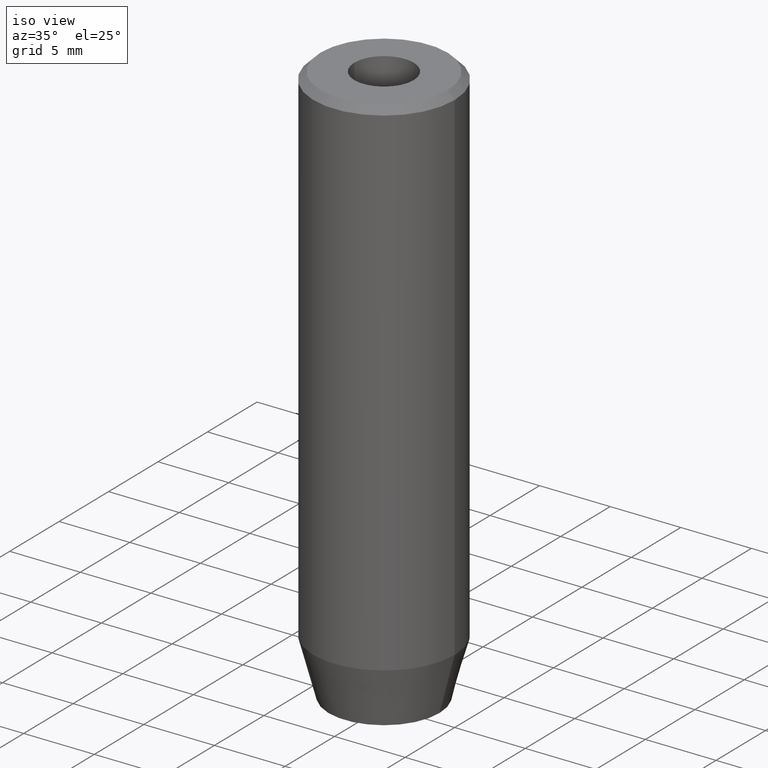
[diagram: clean part render]
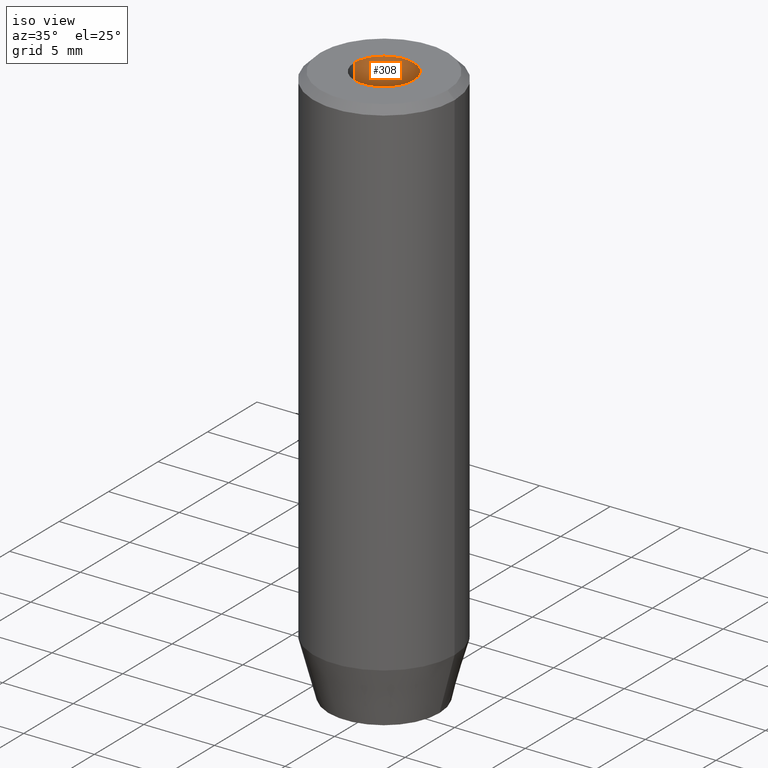
[diagram: same view with one face highlighted and labeled with its STEP entity id]
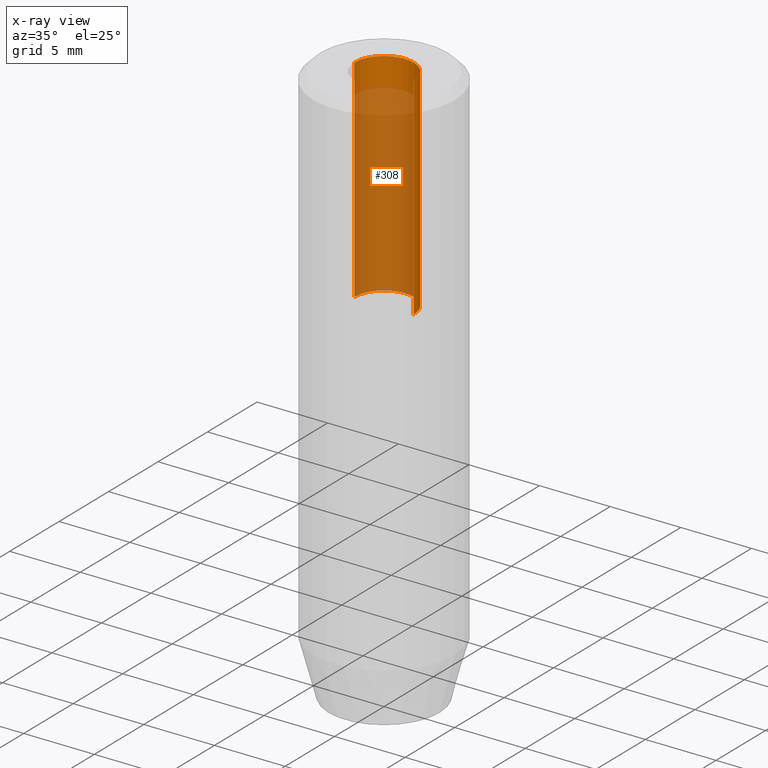
[diagram: x-ray of the same camera — body ghosted, the highlighted face saturated]
A machine part, iso view. The second image highlights one B-rep face of the part: STEP entity #308.
The next image is the same camera in x-ray: the body ghosted, the highlighted face saturated — about 77% of this face is hidden behind the body in this view.
In plain terms, the highlighted cylindrical surface (edge-blend (fillet) strip) has radius 2.1 mm, axis along (-0, -0, 1).
Its self-contained STEP definition (entity closure, byte-faithful):
#18 = EDGE_CURVE ( 'NONE', #320, #260, #238, .T. ) ;
#26 = VECTOR ( 'NONE', #510, 1000.000000000000000 ) ;
#55 = CARTESIAN_POINT ( 'NONE',  ( -2.099999999999998757, 2.571758278209439985E-16, -1.990051048614449116E-16 ) ) ;
#60 = FACE_OUTER_BOUND ( 'NONE', #553, .T. ) ;
#82 = VERTEX_POINT ( 'NONE', #442 ) ;
#88 = DIRECTION ( 'NONE',  ( -0.000000000000000000, -0.000000000000000000, 1.000000000000000000 ) ) ;
#100 = CARTESIAN_POINT ( 'NONE',  ( 0.000000000000000000, 0.000000000000000000, 0.000000000000000000 ) ) ;
#137 = AXIS2_PLACEMENT_3D ( 'NONE', #535, #217, #441 ) ;
#140 = ORIENTED_EDGE ( 'NONE', *, *, #18, .F. ) ;
#143 = CYLINDRICAL_SURFACE ( 'NONE', #469, 2.099999999999997868 ) ;
#166 = DIRECTION ( 'NONE',  ( 1.000000000000000000, 0.000000000000000000, 0.000000000000000000 ) ) ;
#186 = DIRECTION ( 'NONE',  ( -0.000000000000000000, -0.000000000000000000, 1.000000000000000000 ) ) ;
#202 = VECTOR ( 'NONE', #88, 1000.000000000000000 ) ;
#217 = DIRECTION ( 'NONE',  ( -0.000000000000000000, -0.000000000000000000, 1.000000000000000000 ) ) ;
#238 = LINE ( 'NONE', #365, #26 ) ;
#260 = VERTEX_POINT ( 'NONE', #55 ) ;
#261 = AXIS2_PLACEMENT_3D ( 'NONE', #274, #449, #166 ) ;
#263 = EDGE_CURVE ( 'NONE', #82, #316, #317, .T. ) ;
#267 = EDGE_CURVE ( 'NONE', #82, #320, #344, .T. ) ;
#274 = CARTESIAN_POINT ( 'NONE',  ( 0.000000000000000000, 0.000000000000000000, -15.00000000000000000 ) ) ;
#298 = EDGE_CURVE ( 'NONE', #316, #260, #385, .T. ) ;
#308 = ADVANCED_FACE ( 'NONE', ( #60 ), #143, .F. ) ;
#311 = CARTESIAN_POINT ( 'NONE',  ( 2.099999999999998757, 0.000000000000000000, -1.990051048614449116E-16 ) ) ;
#316 = VERTEX_POINT ( 'NONE', #311 ) ;
#317 = LINE ( 'NONE', #489, #202 ) ;
#320 = VERTEX_POINT ( 'NONE', #587 ) ;
#344 = CIRCLE ( 'NONE', #261, 2.099999999999996980 ) ;
#365 = CARTESIAN_POINT ( 'NONE',  ( -2.099999999999997868, 2.571758278209438999E-16, 0.000000000000000000 ) ) ;
#370 = DIRECTION ( 'NONE',  ( 1.000000000000000000, 0.000000000000000000, 0.000000000000000000 ) ) ;
#385 = CIRCLE ( 'NONE', #137, 2.099999999999998757 ) ;
#407 = ORIENTED_EDGE ( 'NONE', *, *, #263, .T. ) ;
#441 = DIRECTION ( 'NONE',  ( 1.000000000000000000, 0.000000000000000000, 0.000000000000000000 ) ) ;
#442 = CARTESIAN_POINT ( 'NONE',  ( 2.099999999999996980, 0.000000000000000000, -15.00000000000000000 ) ) ;
#449 = DIRECTION ( 'NONE',  ( -0.000000000000000000, -0.000000000000000000, 1.000000000000000000 ) ) ;
#469 = AXIS2_PLACEMENT_3D ( 'NONE', #100, #186, #370 ) ;
#485 = ORIENTED_EDGE ( 'NONE', *, *, #298, .T. ) ;
#489 = CARTESIAN_POINT ( 'NONE',  ( 2.099999999999997868, 0.000000000000000000, 0.000000000000000000 ) ) ;
#510 = DIRECTION ( 'NONE',  ( -0.000000000000000000, -0.000000000000000000, 1.000000000000000000 ) ) ;
#535 = CARTESIAN_POINT ( 'NONE',  ( 0.000000000000000000, 0.000000000000000000, -1.990051048614449116E-16 ) ) ;
#541 = ORIENTED_EDGE ( 'NONE', *, *, #267, .F. ) ;
#553 = EDGE_LOOP ( 'NONE', ( #140, #541, #407, #485 ) ) ;
#587 = CARTESIAN_POINT ( 'NONE',  ( -2.099999999999996980, 2.571758278209438013E-16, -15.00000000000000000 ) ) ;